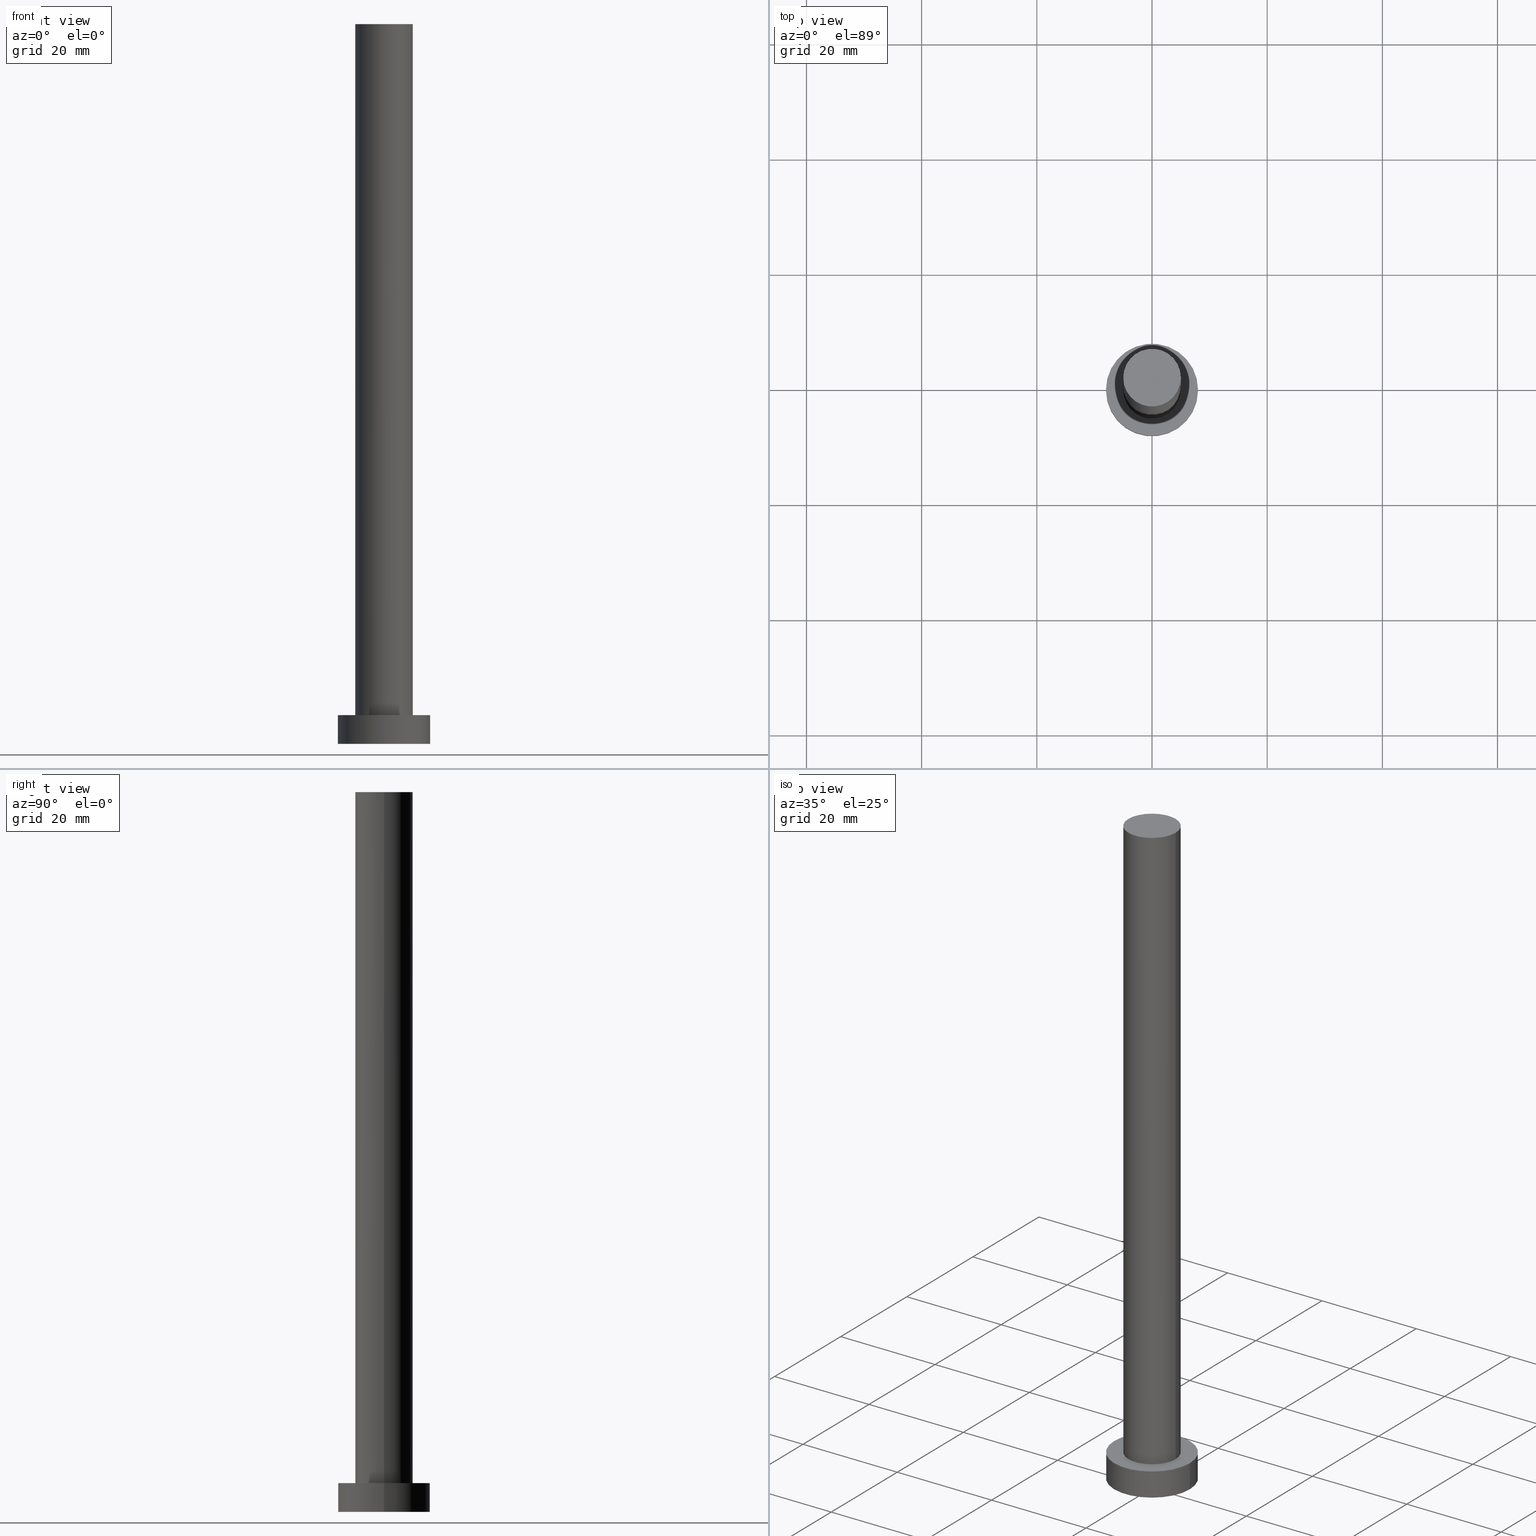
[diagram: canonical four-view strip — front | top / right | iso, engineering-drawing reading convention]
A machine part, canonical four-view strip (front | top / right | iso — engineering-drawing reading convention). The complete STEP part file that produces these views, byte-faithful:
ISO-10303-21;
HEADER;
FILE_DESCRIPTION (( 'STEP AP203' ),
    '1' );
FILE_NAME ('521c.STEP',
    '2023-02-12T11:01:19',
    ( '' ),
    ( '' ),
    'SwSTEP 2.0',
    'SolidWorks 2019',
    '' );
FILE_SCHEMA (( 'CONFIG_CONTROL_DESIGN' ));
ENDSEC;

DATA;
#1 =( GEOMETRIC_REPRESENTATION_CONTEXT ( 3 ) GLOBAL_UNCERTAINTY_ASSIGNED_CONTEXT ( ( #76 ) ) GLOBAL_UNIT_ASSIGNED_CONTEXT ( ( #173, #137, #121 ) ) REPRESENTATION_CONTEXT ( 'NONE', 'WORKASPACE' ) );
#2 = LOCAL_TIME ( 12, 1, 19.00000000000000000, #67 ) ;
#3 = EDGE_CURVE ( 'NONE', #247, #142, #169, .T. ) ;
#4 = PERSON_AND_ORGANIZATION ( #216, #43 ) ;
#5 = VERTEX_POINT ( 'NONE', #28 ) ;
#6 = APPROVAL_DATE_TIME ( #65, #10 ) ;
#7 = DIRECTION ( 'NONE',  ( 0.000000000000000000, 0.000000000000000000, 1.000000000000000000 ) ) ;
#8 = APPROVAL_STATUS ( 'not_yet_approved' ) ;
#9 = VERTEX_POINT ( 'NONE', #167 ) ;
#10 = APPROVAL ( #181, 'NEUR�EN�' ) ;
#11 = CARTESIAN_POINT ( 'NONE',  ( 0.000000000000000000, 0.000000000000000000, 0.000000000000000000 ) ) ;
#12 = CARTESIAN_POINT ( 'NONE',  ( 0.000000000000000000, 0.000000000000000000, 5.000000000000000000 ) ) ;
#13 = EDGE_CURVE ( 'NONE', #48, #95, #240, .T. ) ;
#14 = PRODUCT ( '521c', '521c', '', ( #208 ) ) ;
#15 = CARTESIAN_POINT ( 'NONE',  ( 0.000000000000000000, 0.000000000000000000, 5.000000000000000000 ) ) ;
#16 = EDGE_CURVE ( 'NONE', #142, #247, #24, .T. ) ;
#17 = CYLINDRICAL_SURFACE ( 'NONE', #200, 5.000000000000000000 ) ;
#18 = DIRECTION ( 'NONE',  ( 0.000000000000000000, 0.000000000000000000, 1.000000000000000000 ) ) ;
#19 = ORIENTED_EDGE ( 'NONE', *, *, #26, .F. ) ;
#20 = CARTESIAN_POINT ( 'NONE',  ( 5.000000000000000000, 6.123233995736766282E-16, 125.0000000000000000 ) ) ;
#21 = CARTESIAN_POINT ( 'NONE',  ( 0.000000000000000000, 0.000000000000000000, 125.0000000000000000 ) ) ;
#22 = ORIENTED_EDGE ( 'NONE', *, *, #16, .T. ) ;
#23 = PERSON_AND_ORGANIZATION ( #216, #43 ) ;
#24 = CIRCLE ( 'NONE', #108, 5.000000000000000000 ) ;
#25 = APPLICATION_PROTOCOL_DEFINITION ( 'international standard', 'config_control_design', 1994, #62 ) ;
#26 = EDGE_CURVE ( 'NONE', #91, #9, #63, .T. ) ;
#27 = CALENDAR_DATE ( 2023, 12, 2 ) ;
#28 = CARTESIAN_POINT ( 'NONE',  ( -8.000000000000000000, 0.000000000000000000, 5.000000000000000000 ) ) ;
#29 = CALENDAR_DATE ( 2023, 12, 2 ) ;
#30 = VERTEX_POINT ( 'NONE', #144 ) ;
#31 = ORIENTED_EDGE ( 'NONE', *, *, #117, .T. ) ;
#32 = CC_DESIGN_PERSON_AND_ORGANIZATION_ASSIGNMENT ( #104, #203, ( #141 ) ) ;
#33 = EDGE_LOOP ( 'NONE', ( #156, #138 ) ) ;
#34 = APPROVAL_PERSON_ORGANIZATION ( #4, #123, #255 ) ;
#35 = CARTESIAN_POINT ( 'NONE',  ( 0.000000000000000000, 0.000000000000000000, 5.000000000000000000 ) ) ;
#36 = FACE_OUTER_BOUND ( 'NONE', #207, .T. ) ;
#37 = EDGE_CURVE ( 'NONE', #95, #247, #237, .T. ) ;
#38 = DIRECTION ( 'NONE',  ( -0.000000000000000000, -0.000000000000000000, -1.000000000000000000 ) ) ;
#39 = CARTESIAN_POINT ( 'NONE',  ( 0.000000000000000000, 0.000000000000000000, 5.000000000000000000 ) ) ;
#40 = ADVANCED_FACE ( 'NONE', ( #145 ), #55, .T. ) ;
#41 = DIRECTION ( 'NONE',  ( 1.000000000000000000, 0.000000000000000000, -0.000000000000000000 ) ) ;
#42 = ORIENTED_EDGE ( 'NONE', *, *, #155, .F. ) ;
#43 = ORGANIZATION ( 'NEUR�EN�', 'NEUR�EN�', '' ) ;
#44 = CC_DESIGN_SECURITY_CLASSIFICATION ( #159, ( #82 ) ) ;
#45 = PERSON_AND_ORGANIZATION ( #216, #43 ) ;
#46 = ADVANCED_FACE ( 'NONE', ( #225 ), #131, .T. ) ;
#47 = ORIENTED_EDGE ( 'NONE', *, *, #37, .F. ) ;
#48 = VERTEX_POINT ( 'NONE', #106 ) ;
#49 = ORIENTED_EDGE ( 'NONE', *, *, #117, .F. ) ;
#50 = APPLICATION_CONTEXT ( 'configuration controlled 3d designs of mechanical parts and assemblies' ) ;
#51 = COORDINATED_UNIVERSAL_TIME_OFFSET ( 1, 0, .AHEAD. ) ;
#52 = CARTESIAN_POINT ( 'NONE',  ( -5.000000000000000000, 0.000000000000000000, 125.0000000000000000 ) ) ;
#53 = EDGE_CURVE ( 'NONE', #30, #9, #202, .T. ) ;
#54 = AXIS2_PLACEMENT_3D ( 'NONE', #68, #219, #112 ) ;
#55 = CYLINDRICAL_SURFACE ( 'NONE', #54, 8.000000000000000000 ) ;
#56 = CARTESIAN_POINT ( 'NONE',  ( 8.000000000000000000, 9.797174393178825657E-16, 5.000000000000000000 ) ) ;
#57 = CARTESIAN_POINT ( 'NONE',  ( 0.000000000000000000, 0.000000000000000000, 0.000000000000000000 ) ) ;
#58 = EDGE_CURVE ( 'NONE', #9, #91, #215, .T. ) ;
#59 = LOCAL_TIME ( 12, 1, 19.00000000000000000, #51 ) ;
#60 = DIRECTION ( 'NONE',  ( 1.000000000000000000, 0.000000000000000000, 0.000000000000000000 ) ) ;
#61 = CARTESIAN_POINT ( 'NONE',  ( -5.000000000000000000, 0.000000000000000000, 5.000000000000000000 ) ) ;
#62 = APPLICATION_CONTEXT ( 'configuration controlled 3d designs of mechanical parts and assemblies' ) ;
#63 = CIRCLE ( 'NONE', #252, 8.000000000000000000 ) ;
#64 = DATE_AND_TIME ( #89, #221 ) ;
#65 = DATE_AND_TIME ( #158, #177 ) ;
#66 = EDGE_LOOP ( 'NONE', ( #205, #42, #125, #110 ) ) ;
#67 = COORDINATED_UNIVERSAL_TIME_OFFSET ( 1, 0, .AHEAD. ) ;
#68 = CARTESIAN_POINT ( 'NONE',  ( 0.000000000000000000, 0.000000000000000000, 5.000000000000000000 ) ) ;
#69 = DATE_TIME_ROLE ( 'classification_date' ) ;
#70 = ADVANCED_FACE ( 'NONE', ( #74, #147 ), #226, .T. ) ;
#71 = CARTESIAN_POINT ( 'NONE',  ( 0.000000000000000000, 0.000000000000000000, 5.000000000000000000 ) ) ;
#72 = EDGE_LOOP ( 'NONE', ( #19, #192 ) ) ;
#73 = AXIS2_PLACEMENT_3D ( 'NONE', #12, #75, #149 ) ;
#74 = FACE_BOUND ( 'NONE', #196, .T. ) ;
#75 = DIRECTION ( 'NONE',  ( 0.000000000000000000, 0.000000000000000000, 1.000000000000000000 ) ) ;
#76 = UNCERTAINTY_MEASURE_WITH_UNIT (LENGTH_MEASURE( 1.000000000000000082E-05 ), #173, 'distance_accuracy_value', 'NONE');
#77 = CARTESIAN_POINT ( 'NONE',  ( -5.000000000000000000, 0.000000000000000000, 125.0000000000000000 ) ) ;
#78 = MANIFOLD_SOLID_BREP ( 'P�idat vysunut�m3', #193 ) ;
#79 = PRODUCT_DEFINITION_SHAPE ( 'NONE', 'NONE',  #141 ) ;
#80 = PLANE ( 'NONE',  #122 ) ;
#81 = CIRCLE ( 'NONE', #135, 8.000000000000000000 ) ;
#82 = PRODUCT_DEFINITION_FORMATION_WITH_SPECIFIED_SOURCE ( 'LIBOVOLN�', '', #14, .NOT_KNOWN. ) ;
#83 = CARTESIAN_POINT ( 'NONE',  ( 0.000000000000000000, 0.000000000000000000, 5.000000000000000000 ) ) ;
#84 = EDGE_LOOP ( 'NONE', ( #182, #90 ) ) ;
#85 = CC_DESIGN_PERSON_AND_ORGANIZATION_ASSIGNMENT ( #45, #129, ( #82 ) ) ;
#86 = AXIS2_PLACEMENT_3D ( 'NONE', #154, #246, #41 ) ;
#87 = DATE_AND_TIME ( #27, #2 ) ;
#88 = APPROVAL_PERSON_ORGANIZATION ( #198, #10, #213 ) ;
#89 = CALENDAR_DATE ( 2023, 12, 2 ) ;
#90 = ORIENTED_EDGE ( 'NONE', *, *, #230, .T. ) ;
#91 = VERTEX_POINT ( 'NONE', #199 ) ;
#92 = ORIENTED_EDGE ( 'NONE', *, *, #58, .T. ) ;
#93 = DIRECTION ( 'NONE',  ( -0.000000000000000000, -0.000000000000000000, -1.000000000000000000 ) ) ;
#94 = ADVANCED_FACE ( 'NONE', ( #113 ), #17, .T. ) ;
#95 = VERTEX_POINT ( 'NONE', #77 ) ;
#96 = CARTESIAN_POINT ( 'NONE',  ( -8.000000000000000000, 0.000000000000000000, 5.000000000000000000 ) ) ;
#97 = CC_DESIGN_DATE_AND_TIME_ASSIGNMENT ( #64, #69, ( #159 ) ) ;
#98 = DIRECTION ( 'NONE',  ( -0.000000000000000000, -0.000000000000000000, -1.000000000000000000 ) ) ;
#99 = APPROVAL_PERSON_ORGANIZATION ( #101, #197, #178 ) ;
#100 = ORIENTED_EDGE ( 'NONE', *, *, #164, .T. ) ;
#101 = PERSON_AND_ORGANIZATION ( #216, #43 ) ;
#102 = ADVANCED_FACE ( 'NONE', ( #36 ), #191, .T. ) ;
#103 = AXIS2_PLACEMENT_3D ( 'NONE', #71, #184, #223 ) ;
#104 = PERSON_AND_ORGANIZATION ( #216, #43 ) ;
#105 = CC_DESIGN_APPROVAL ( #197, ( #159 ) ) ;
#106 = CARTESIAN_POINT ( 'NONE',  ( 5.000000000000000000, 6.123233995736766282E-16, 125.0000000000000000 ) ) ;
#107 = DIRECTION ( 'NONE',  ( 0.000000000000000000, 0.000000000000000000, 1.000000000000000000 ) ) ;
#108 = AXIS2_PLACEMENT_3D ( 'NONE', #35, #160, #126 ) ;
#109 = DATE_TIME_ROLE ( 'creation_date' ) ;
#110 = ORIENTED_EDGE ( 'NONE', *, *, #3, .T. ) ;
#111 = ORIENTED_EDGE ( 'NONE', *, *, #16, .F. ) ;
#112 = DIRECTION ( 'NONE',  ( -1.000000000000000000, 0.000000000000000000, 0.000000000000000000 ) ) ;
#113 = FACE_OUTER_BOUND ( 'NONE', #179, .T. ) ;
#114 = ADVANCED_BREP_SHAPE_REPRESENTATION ( '521c', ( #78, #220 ), #1 ) ;
#115 = AXIS2_PLACEMENT_3D ( 'NONE', #11, #7, #241 ) ;
#116 = LINE ( 'NONE', #96, #118 ) ;
#117 = EDGE_CURVE ( 'NONE', #5, #91, #116, .T. ) ;
#118 = VECTOR ( 'NONE', #98, 1000.000000000000000 ) ;
#119 = FACE_OUTER_BOUND ( 'NONE', #72, .T. ) ;
#120 = DIRECTION ( 'NONE',  ( 1.000000000000000000, 0.000000000000000000, 0.000000000000000000 ) ) ;
#121 =( NAMED_UNIT ( * ) SI_UNIT ( $, .STERADIAN. ) SOLID_ANGLE_UNIT ( ) );
#122 = AXIS2_PLACEMENT_3D ( 'NONE', #249, #231, #245 ) ;
#123 = APPROVAL ( #253, 'NEUR�EN�' ) ;
#124 = COORDINATED_UNIVERSAL_TIME_OFFSET ( 1, 0, .AHEAD. ) ;
#125 = ORIENTED_EDGE ( 'NONE', *, *, #37, .T. ) ;
#126 = DIRECTION ( 'NONE',  ( 1.000000000000000000, 0.000000000000000000, 0.000000000000000000 ) ) ;
#127 = COORDINATED_UNIVERSAL_TIME_OFFSET ( 1, 0, .AHEAD. ) ;
#128 = DIRECTION ( 'NONE',  ( -0.000000000000000000, -0.000000000000000000, -1.000000000000000000 ) ) ;
#129 = PERSON_AND_ORGANIZATION_ROLE ( 'creator' ) ;
#130 = ORIENTED_EDGE ( 'NONE', *, *, #53, .T. ) ;
#131 = CYLINDRICAL_SURFACE ( 'NONE', #224, 5.000000000000000000 ) ;
#132 = DIRECTION ( 'NONE',  ( 1.000000000000000000, 0.000000000000000000, 0.000000000000000000 ) ) ;
#133 = DIRECTION ( 'NONE',  ( 1.000000000000000000, 0.000000000000000000, 0.000000000000000000 ) ) ;
#134 = AXIS2_PLACEMENT_3D ( 'NONE', #162, #166, #132 ) ;
#135 = AXIS2_PLACEMENT_3D ( 'NONE', #83, #18, #120 ) ;
#136 = DIRECTION ( 'NONE',  ( -1.000000000000000000, 0.000000000000000000, 0.000000000000000000 ) ) ;
#137 =( NAMED_UNIT ( * ) PLANE_ANGLE_UNIT ( ) SI_UNIT ( $, .RADIAN. ) );
#138 = ORIENTED_EDGE ( 'NONE', *, *, #13, .T. ) ;
#139 = DATE_AND_TIME ( #29, #59 ) ;
#140 = AXIS2_PLACEMENT_3D ( 'NONE', #15, #175, #211 ) ;
#141 = PRODUCT_DEFINITION ( 'NEZN�M�', '', #82, #228 ) ;
#142 = VERTEX_POINT ( 'NONE', #229 ) ;
#143 = APPROVAL_DATE_TIME ( #87, #197 ) ;
#144 = CARTESIAN_POINT ( 'NONE',  ( 8.000000000000000000, 9.797174393178825657E-16, 5.000000000000000000 ) ) ;
#145 = FACE_OUTER_BOUND ( 'NONE', #251, .T. ) ;
#146 = CC_DESIGN_DATE_AND_TIME_ASSIGNMENT ( #139, #109, ( #141 ) ) ;
#147 = FACE_OUTER_BOUND ( 'NONE', #84, .T. ) ;
#148 = LOCAL_TIME ( 12, 1, 19.00000000000000000, #127 ) ;
#149 = DIRECTION ( 'NONE',  ( 1.000000000000000000, 0.000000000000000000, -0.000000000000000000 ) ) ;
#150 = PRODUCT_RELATED_PRODUCT_CATEGORY ( 'detail', '', ( #14 ) ) ;
#151 = DIRECTION ( 'NONE',  ( -1.000000000000000000, 0.000000000000000000, 0.000000000000000000 ) ) ;
#152 = DIRECTION ( 'NONE',  ( 0.000000000000000000, 0.000000000000000000, 1.000000000000000000 ) ) ;
#153 = PERSON_AND_ORGANIZATION_ROLE ( 'design_owner' ) ;
#154 = CARTESIAN_POINT ( 'NONE',  ( 0.000000000000000000, 0.000000000000000000, 0.000000000000000000 ) ) ;
#155 = EDGE_CURVE ( 'NONE', #95, #48, #168, .T. ) ;
#156 = ORIENTED_EDGE ( 'NONE', *, *, #155, .T. ) ;
#157 = VECTOR ( 'NONE', #186, 1000.000000000000000 ) ;
#158 = CALENDAR_DATE ( 2023, 12, 2 ) ;
#159 = SECURITY_CLASSIFICATION ( '', '', #232 ) ;
#160 = DIRECTION ( 'NONE',  ( 0.000000000000000000, 0.000000000000000000, 1.000000000000000000 ) ) ;
#161 = COORDINATED_UNIVERSAL_TIME_OFFSET ( 1, 0, .AHEAD. ) ;
#162 = CARTESIAN_POINT ( 'NONE',  ( 0.000000000000000000, 0.000000000000000000, 125.0000000000000000 ) ) ;
#163 = CC_DESIGN_APPROVAL ( #10, ( #82 ) ) ;
#164 = EDGE_CURVE ( 'NONE', #48, #142, #188, .T. ) ;
#165 = DIRECTION ( 'NONE',  ( 1.000000000000000000, 0.000000000000000000, 0.000000000000000000 ) ) ;
#166 = DIRECTION ( 'NONE',  ( 0.000000000000000000, 0.000000000000000000, 1.000000000000000000 ) ) ;
#167 = CARTESIAN_POINT ( 'NONE',  ( 8.000000000000000000, 9.797174393178825657E-16, 0.000000000000000000 ) ) ;
#168 = CIRCLE ( 'NONE', #176, 5.000000000000000000 ) ;
#169 = CIRCLE ( 'NONE', #103, 5.000000000000000000 ) ;
#170 = APPLICATION_PROTOCOL_DEFINITION ( 'international standard', 'config_control_design', 1994, #50 ) ;
#171 = CC_DESIGN_APPROVAL ( #123, ( #141 ) ) ;
#172 = DIRECTION ( 'NONE',  ( -0.000000000000000000, -0.000000000000000000, -1.000000000000000000 ) ) ;
#173 =( LENGTH_UNIT ( ) NAMED_UNIT ( * ) SI_UNIT ( .MILLI., .METRE. ) );
#174 = CC_DESIGN_PERSON_AND_ORGANIZATION_ASSIGNMENT ( #209, #153, ( #14 ) ) ;
#175 = DIRECTION ( 'NONE',  ( 0.000000000000000000, 0.000000000000000000, 1.000000000000000000 ) ) ;
#176 = AXIS2_PLACEMENT_3D ( 'NONE', #250, #243, #60 ) ;
#177 = LOCAL_TIME ( 12, 1, 19.00000000000000000, #161 ) ;
#178 = APPROVAL_ROLE ( '' ) ;
#179 = EDGE_LOOP ( 'NONE', ( #212, #100, #22, #47 ) ) ;
#180 = PERSON_AND_ORGANIZATION ( #216, #43 ) ;
#181 = APPROVAL_STATUS ( 'not_yet_approved' ) ;
#182 = ORIENTED_EDGE ( 'NONE', *, *, #218, .T. ) ;
#183 = DIRECTION ( 'NONE',  ( -1.000000000000000000, 0.000000000000000000, 0.000000000000000000 ) ) ;
#184 = DIRECTION ( 'NONE',  ( 0.000000000000000000, 0.000000000000000000, 1.000000000000000000 ) ) ;
#185 = ORIENTED_EDGE ( 'NONE', *, *, #3, .F. ) ;
#186 = DIRECTION ( 'NONE',  ( -0.000000000000000000, -0.000000000000000000, -1.000000000000000000 ) ) ;
#187 = ADVANCED_FACE ( 'NONE', ( #195 ), #80, .T. ) ;
#188 = LINE ( 'NONE', #20, #189 ) ;
#189 = VECTOR ( 'NONE', #210, 1000.000000000000000 ) ;
#190 = CIRCLE ( 'NONE', #140, 8.000000000000000000 ) ;
#191 = CYLINDRICAL_SURFACE ( 'NONE', #248, 8.000000000000000000 ) ;
#192 = ORIENTED_EDGE ( 'NONE', *, *, #58, .F. ) ;
#193 = CLOSED_SHELL ( 'NONE', ( #94, #102, #40, #70, #244, #46, #187 ) ) ;
#194 = PLANE ( 'NONE',  #86 ) ;
#195 = FACE_OUTER_BOUND ( 'NONE', #33, .T. ) ;
#196 = EDGE_LOOP ( 'NONE', ( #185, #111 ) ) ;
#197 = APPROVAL ( #8, 'NEUR�EN�' ) ;
#198 = PERSON_AND_ORGANIZATION ( #216, #43 ) ;
#199 = CARTESIAN_POINT ( 'NONE',  ( -8.000000000000000000, 0.000000000000000000, 0.000000000000000000 ) ) ;
#200 = AXIS2_PLACEMENT_3D ( 'NONE', #21, #172, #136 ) ;
#201 = CALENDAR_DATE ( 2023, 12, 2 ) ;
#202 = LINE ( 'NONE', #56, #157 ) ;
#203 = PERSON_AND_ORGANIZATION_ROLE ( 'creator' ) ;
#204 = VECTOR ( 'NONE', #93, 1000.000000000000000 ) ;
#205 = ORIENTED_EDGE ( 'NONE', *, *, #164, .F. ) ;
#206 = CARTESIAN_POINT ( 'NONE',  ( 0.000000000000000000, 0.000000000000000000, 0.000000000000000000 ) ) ;
#207 = EDGE_LOOP ( 'NONE', ( #235, #130, #92, #49 ) ) ;
#208 = MECHANICAL_CONTEXT ( 'NONE', #50, 'mechanical' ) ;
#209 = PERSON_AND_ORGANIZATION ( #216, #43 ) ;
#210 = DIRECTION ( 'NONE',  ( -0.000000000000000000, -0.000000000000000000, -1.000000000000000000 ) ) ;
#211 = DIRECTION ( 'NONE',  ( 1.000000000000000000, 0.000000000000000000, 0.000000000000000000 ) ) ;
#212 = ORIENTED_EDGE ( 'NONE', *, *, #13, .F. ) ;
#213 = APPROVAL_ROLE ( '' ) ;
#214 = APPROVAL_DATE_TIME ( #217, #123 ) ;
#215 = CIRCLE ( 'NONE', #115, 8.000000000000000000 ) ;
#216 = PERSON ( 'NEUR�EN�', 'NEUR�EN�', 'NEUR�EN�', ('NEUR�EN�'), ('NEUR�EN�'), ('NEUR�EN�') ) ;
#217 = DATE_AND_TIME ( #201, #148 ) ;
#218 = EDGE_CURVE ( 'NONE', #5, #30, #190, .T. ) ;
#219 = DIRECTION ( 'NONE',  ( -0.000000000000000000, -0.000000000000000000, -1.000000000000000000 ) ) ;
#220 = AXIS2_PLACEMENT_3D ( 'NONE', #57, #152, #133 ) ;
#221 = LOCAL_TIME ( 12, 1, 19.00000000000000000, #124 ) ;
#222 = SHAPE_DEFINITION_REPRESENTATION ( #79, #114 ) ;
#223 = DIRECTION ( 'NONE',  ( 1.000000000000000000, 0.000000000000000000, 0.000000000000000000 ) ) ;
#224 = AXIS2_PLACEMENT_3D ( 'NONE', #242, #128, #183 ) ;
#225 = FACE_OUTER_BOUND ( 'NONE', #66, .T. ) ;
#226 = PLANE ( 'NONE',  #73 ) ;
#227 = ORIENTED_EDGE ( 'NONE', *, *, #53, .F. ) ;
#228 = DESIGN_CONTEXT ( 'detailed design', #62, 'design' ) ;
#229 = CARTESIAN_POINT ( 'NONE',  ( 5.000000000000000000, 6.123233995736766282E-16, 5.000000000000000000 ) ) ;
#230 = EDGE_CURVE ( 'NONE', #30, #5, #81, .T. ) ;
#231 = DIRECTION ( 'NONE',  ( 0.000000000000000000, 0.000000000000000000, 1.000000000000000000 ) ) ;
#232 = SECURITY_CLASSIFICATION_LEVEL ( 'unclassified' ) ;
#233 = PERSON_AND_ORGANIZATION_ROLE ( 'classification_officer' ) ;
#234 = CC_DESIGN_PERSON_AND_ORGANIZATION_ASSIGNMENT ( #180, #233, ( #159 ) ) ;
#235 = ORIENTED_EDGE ( 'NONE', *, *, #230, .F. ) ;
#236 = PERSON_AND_ORGANIZATION_ROLE ( 'design_supplier' ) ;
#237 = LINE ( 'NONE', #52, #204 ) ;
#238 = ORIENTED_EDGE ( 'NONE', *, *, #26, .T. ) ;
#239 = CC_DESIGN_PERSON_AND_ORGANIZATION_ASSIGNMENT ( #23, #236, ( #82 ) ) ;
#240 = CIRCLE ( 'NONE', #134, 5.000000000000000000 ) ;
#241 = DIRECTION ( 'NONE',  ( 1.000000000000000000, 0.000000000000000000, 0.000000000000000000 ) ) ;
#242 = CARTESIAN_POINT ( 'NONE',  ( 0.000000000000000000, 0.000000000000000000, 125.0000000000000000 ) ) ;
#243 = DIRECTION ( 'NONE',  ( 0.000000000000000000, 0.000000000000000000, 1.000000000000000000 ) ) ;
#244 = ADVANCED_FACE ( 'NONE', ( #119 ), #194, .F. ) ;
#245 = DIRECTION ( 'NONE',  ( 1.000000000000000000, 0.000000000000000000, -0.000000000000000000 ) ) ;
#246 = DIRECTION ( 'NONE',  ( 0.000000000000000000, 0.000000000000000000, 1.000000000000000000 ) ) ;
#247 = VERTEX_POINT ( 'NONE', #61 ) ;
#248 = AXIS2_PLACEMENT_3D ( 'NONE', #39, #38, #151 ) ;
#249 = CARTESIAN_POINT ( 'NONE',  ( 0.000000000000000000, 0.000000000000000000, 125.0000000000000000 ) ) ;
#250 = CARTESIAN_POINT ( 'NONE',  ( 0.000000000000000000, 0.000000000000000000, 125.0000000000000000 ) ) ;
#251 = EDGE_LOOP ( 'NONE', ( #227, #254, #31, #238 ) ) ;
#252 = AXIS2_PLACEMENT_3D ( 'NONE', #206, #107, #165 ) ;
#253 = APPROVAL_STATUS ( 'not_yet_approved' ) ;
#254 = ORIENTED_EDGE ( 'NONE', *, *, #218, .F. ) ;
#255 = APPROVAL_ROLE ( '' ) ;
ENDSEC;
END-ISO-10303-21;
